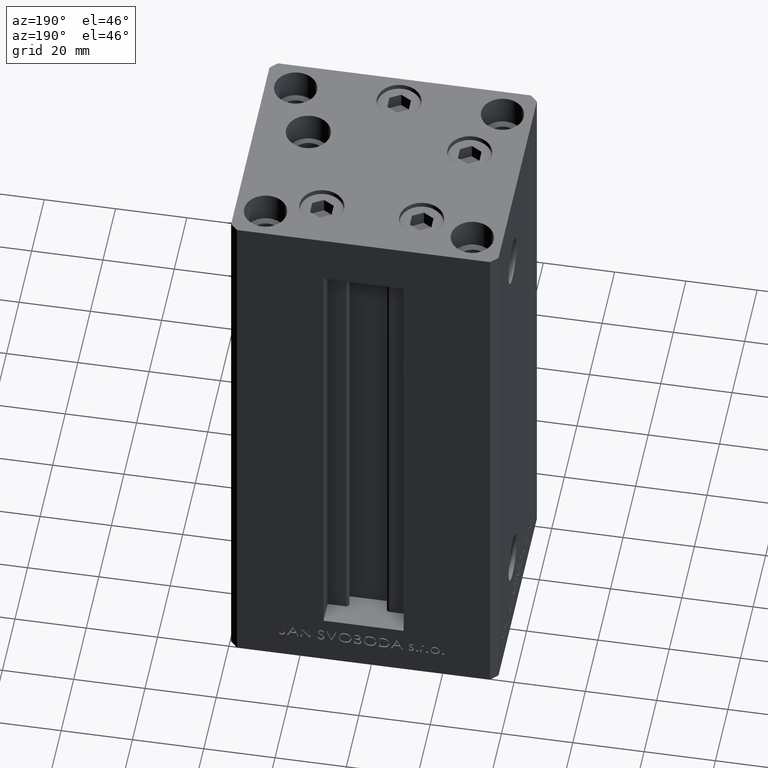
[diagram: clean part render]
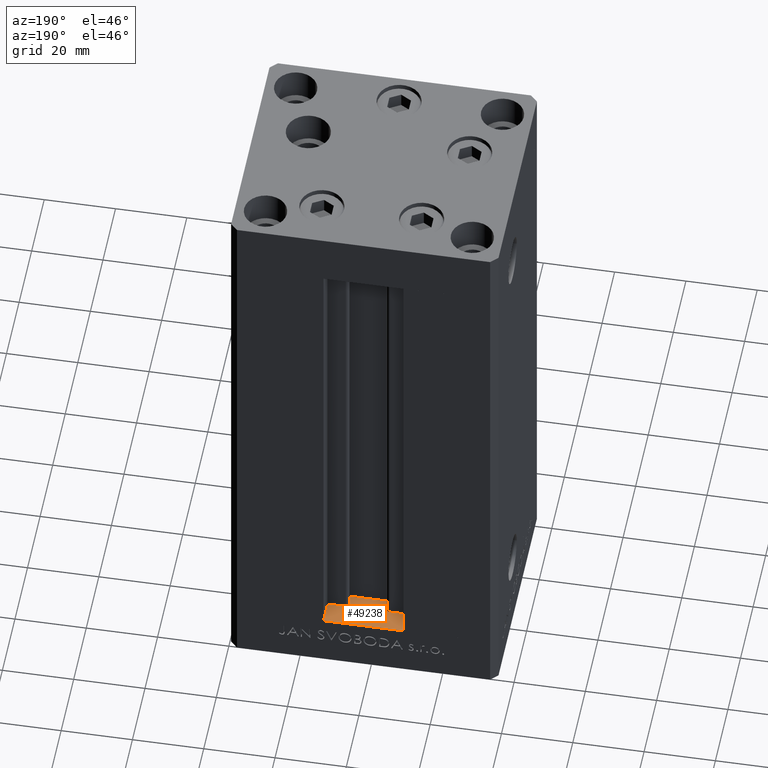
[diagram: same view with one face highlighted and labeled with its STEP entity id]
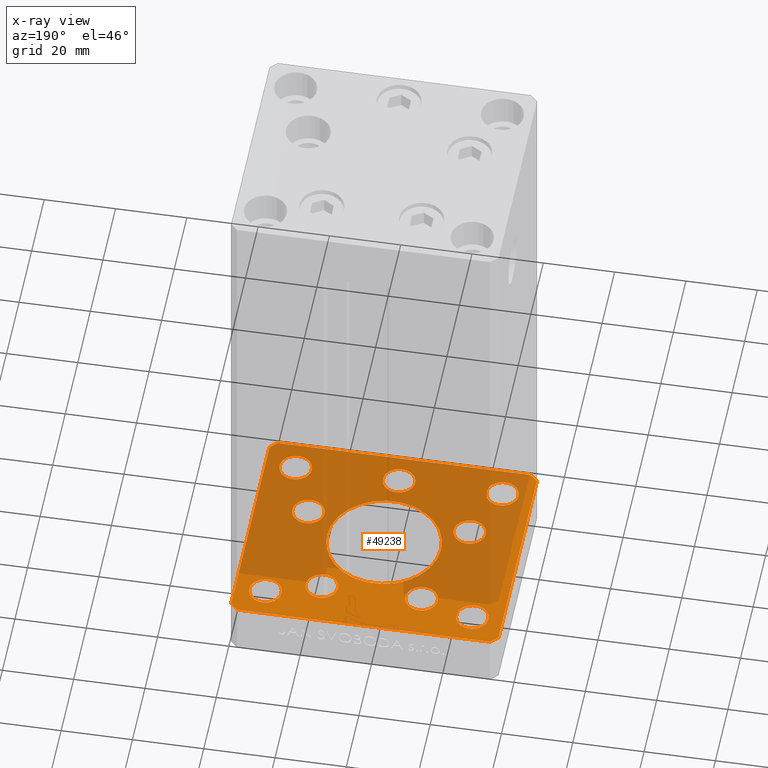
[diagram: x-ray of the same camera — body ghosted, the highlighted face saturated]
A machine part, auxiliary view. The second image highlights one B-rep face of the part: STEP entity #49238.
The next image is the same camera in x-ray: the body ghosted, the highlighted face saturated — about 70% of this face is hidden behind the body in this view.
In plain terms, the highlighted planar face has unit normal (0, 0, -1).
Its self-contained STEP definition (entity closure, byte-faithful):
#31 = CARTESIAN_POINT ( 'NONE',  ( -35.50000000000000711, 32.49999999999997868, -15.00000000000000000 ) ) ;
#572 = CARTESIAN_POINT ( 'NONE',  ( -22.62741699796953299, -8.000000000000000000, -15.00000000000000000 ) ) ;
#692 = CARTESIAN_POINT ( 'NONE',  ( 35.50000000000000000, 32.49999999999999289, -15.00000000000000000 ) ) ;
#1044 = CARTESIAN_POINT ( 'NONE',  ( 24.50000000000000000, 24.00000000000000355, -15.00000000000000000 ) ) ;
#1869 = DIRECTION ( 'NONE',  ( 0.000000000000000000, -0.000000000000000000, -1.000000000000000000 ) ) ;
#2067 = CARTESIAN_POINT ( 'NONE',  ( 33.50000000000000000, -23.99999999999999645, -15.00000000000000000 ) ) ;
#2070 = CARTESIAN_POINT ( 'NONE',  ( -24.50000000000000000, 24.00000000000000711, -15.00000000000000000 ) ) ;
#2324 = CARTESIAN_POINT ( 'NONE',  ( 18.12741699796953299, -8.000000000000000000, -15.00000000000000000 ) ) ;
#2354 = DIRECTION ( 'NONE',  ( -0.000000000000000000, 0.000000000000000000, 1.000000000000000000 ) ) ;
#2449 = DIRECTION ( 'NONE',  ( 0.000000000000000000, -0.000000000000000000, -1.000000000000000000 ) ) ;
#2646 = VERTEX_POINT ( 'NONE', #44359 ) ;
#2682 = DIRECTION ( 'NONE',  ( -0.000000000000000000, 0.000000000000000000, 1.000000000000000000 ) ) ;
#2734 = AXIS2_PLACEMENT_3D ( 'NONE', #23352, #30130, #45480 ) ;
#2791 = DIRECTION ( 'NONE',  ( 0.000000000000000000, -0.000000000000000000, -1.000000000000000000 ) ) ;
#2847 = CARTESIAN_POINT ( 'NONE',  ( -29.00000000000000000, 24.00000000000000711, -15.00000000000000000 ) ) ;
#2968 = VERTEX_POINT ( 'NONE', #5521 ) ;
#3201 = ORIENTED_EDGE ( 'NONE', *, *, #28352, .T. ) ;
#3606 = CIRCLE ( 'NONE', #31682, 4.500000000000001776 ) ;
#4001 = EDGE_LOOP ( 'NONE', ( #44010, #45475 ) ) ;
#4158 = LINE ( 'NONE', #31036, #15124 ) ;
#4668 = EDGE_CURVE ( 'NONE', #26054, #7098, #44201, .T. ) ;
#4969 = LINE ( 'NONE', #16527, #28026 ) ;
#5238 = ORIENTED_EDGE ( 'NONE', *, *, #25130, .T. ) ;
#5419 = VERTEX_POINT ( 'NONE', #47436 ) ;
#5521 = CARTESIAN_POINT ( 'NONE',  ( 37.50000000000000711, 30.50000000000001421, -15.00000000000000000 ) ) ;
#5536 = ORIENTED_EDGE ( 'NONE', *, *, #29501, .T. ) ;
#5693 = CIRCLE ( 'NONE', #33774, 4.499999999999997335 ) ;
#5953 = FACE_BOUND ( 'NONE', #30931, .T. ) ;
#5983 = AXIS2_PLACEMENT_3D ( 'NONE', #25358, #11026, #26340 ) ;
#6270 = CIRCLE ( 'NONE', #7058, 4.500000000000001776 ) ;
#6457 = FACE_OUTER_BOUND ( 'NONE', #41402, .T. ) ;
#6460 = CARTESIAN_POINT ( 'NONE',  ( 35.50000000000001421, -32.49999999999992184, -15.00000000000000000 ) ) ;
#6701 = DIRECTION ( 'NONE',  ( 1.000000000000000000, 0.000000000000000000, 0.000000000000000000 ) ) ;
#6923 = AXIS2_PLACEMENT_3D ( 'NONE', #42790, #32211, #16154 ) ;
#7058 = AXIS2_PLACEMENT_3D ( 'NONE', #39542, #36013, #24459 ) ;
#7098 = VERTEX_POINT ( 'NONE', #11511 ) ;
#7985 = EDGE_CURVE ( 'NONE', #22175, #18802, #12242, .T. ) ;
#8121 = EDGE_CURVE ( 'NONE', #17667, #47147, #41159, .T. ) ;
#8351 = DIRECTION ( 'NONE',  ( 1.000000000000000000, 0.000000000000000000, 0.000000000000000000 ) ) ;
#8387 = CARTESIAN_POINT ( 'NONE',  ( 24.50000000000000711, -23.99999999999999645, -15.00000000000000000 ) ) ;
#8642 = EDGE_LOOP ( 'NONE', ( #21880, #26186 ) ) ;
#8973 = CARTESIAN_POINT ( 'NONE',  ( 29.00000000000000355, -23.99999999999999645, -15.00000000000000000 ) ) ;
#9057 = VERTEX_POINT ( 'NONE', #31727 ) ;
#9321 = DIRECTION ( 'NONE',  ( 0.7071067811865463515, 0.7071067811865487940, 0.000000000000000000 ) ) ;
#10259 = CARTESIAN_POINT ( 'NONE',  ( -27.12741699796953299, -8.000000000000000000, -15.00000000000000000 ) ) ;
#10585 = CARTESIAN_POINT ( 'NONE',  ( -29.00000000000000000, -23.99999999999999645, -15.00000000000000000 ) ) ;
#10612 = DIRECTION ( 'NONE',  ( -0.7071067811865524577, -0.7071067811865426878, 0.000000000000000000 ) ) ;
#10865 = VECTOR ( 'NONE', #26700, 1000.000000000000000 ) ;
#11026 = DIRECTION ( 'NONE',  ( -0.000000000000000000, 0.000000000000000000, 1.000000000000000000 ) ) ;
#11162 = CARTESIAN_POINT ( 'NONE',  ( -18.12741699796953654, -8.000000000000000000, -15.00000000000000000 ) ) ;
#11511 = CARTESIAN_POINT ( 'NONE',  ( 16.00000000000000000, 0.000000000000000000, -15.00000000000000000 ) ) ;
#11529 = EDGE_CURVE ( 'NONE', #38359, #19696, #15577, .T. ) ;
#11785 = CARTESIAN_POINT ( 'NONE',  ( 27.12741699796953654, -8.000000000000000000, -15.00000000000000000 ) ) ;
#12036 = CARTESIAN_POINT ( 'NONE',  ( 0.000000000000000000, 0.000000000000000000, -15.00000000000000000 ) ) ;
#12242 = CIRCLE ( 'NONE', #40323, 4.500000000000000888 ) ;
#12443 = AXIS2_PLACEMENT_3D ( 'NONE', #10585, #2791, #33924 ) ;
#12460 = AXIS2_PLACEMENT_3D ( 'NONE', #36773, #2354, #17678 ) ;
#12774 = VERTEX_POINT ( 'NONE', #692 ) ;
#13040 = ORIENTED_EDGE ( 'NONE', *, *, #29660, .T. ) ;
#13302 = EDGE_CURVE ( 'NONE', #47147, #17667, #46149, .T. ) ;
#13459 = ORIENTED_EDGE ( 'NONE', *, *, #41717, .F. ) ;
#13496 = CARTESIAN_POINT ( 'NONE',  ( 0.000000000000000000, 0.000000000000000000, -15.00000000000000000 ) ) ;
#13983 = DIRECTION ( 'NONE',  ( -0.000000000000000000, 0.000000000000000000, 1.000000000000000000 ) ) ;
#14026 = AXIS2_PLACEMENT_3D ( 'NONE', #36996, #29447, #44788 ) ;
#14185 = DIRECTION ( 'NONE',  ( -0.000000000000000000, 0.000000000000000000, 1.000000000000000000 ) ) ;
#14399 = CARTESIAN_POINT ( 'NONE',  ( -18.49106857963323947, 19.50000000000000000, -15.00000000000000000 ) ) ;
#14804 = CIRCLE ( 'NONE', #23621, 4.499999999999997335 ) ;
#15006 = ORIENTED_EDGE ( 'NONE', *, *, #11529, .F. ) ;
#15062 = ORIENTED_EDGE ( 'NONE', *, *, #34380, .T. ) ;
#15124 = VECTOR ( 'NONE', #46388, 1000.000000000000000 ) ;
#15274 = DIRECTION ( 'NONE',  ( 1.000000000000000000, 0.000000000000000000, 0.000000000000000000 ) ) ;
#15577 = CIRCLE ( 'NONE', #2734, 4.500000000000000888 ) ;
#15876 = ORIENTED_EDGE ( 'NONE', *, *, #27851, .T. ) ;
#15892 = DIRECTION ( 'NONE',  ( -0.000000000000000000, 0.000000000000000000, 1.000000000000000000 ) ) ;
#16154 = DIRECTION ( 'NONE',  ( 1.000000000000000000, 0.000000000000000000, 0.000000000000000000 ) ) ;
#16261 = DIRECTION ( 'NONE',  ( 0.000000000000000000, -0.000000000000000000, -1.000000000000000000 ) ) ;
#16372 = ORIENTED_EDGE ( 'NONE', *, *, #33979, .F. ) ;
#16425 = EDGE_CURVE ( 'NONE', #48877, #26139, #49051, .T. ) ;
#16527 = CARTESIAN_POINT ( 'NONE',  ( -37.50000000000000000, -30.50000000000004263, -15.00000000000000000 ) ) ;
#16849 = LINE ( 'NONE', #17350, #24266 ) ;
#16926 = CARTESIAN_POINT ( 'NONE',  ( -22.62741699796953299, -8.000000000000000000, -15.00000000000000000 ) ) ;
#17152 = VECTOR ( 'NONE', #10612, 1000.000000000000000 ) ;
#17202 = VECTOR ( 'NONE', #45491, 1000.000000000000000 ) ;
#17350 = CARTESIAN_POINT ( 'NONE',  ( 35.50000000000001421, -32.49999999999992184, -15.00000000000000000 ) ) ;
#17467 = AXIS2_PLACEMENT_3D ( 'NONE', #13496, #2682, #6701 ) ;
#17501 = DIRECTION ( 'NONE',  ( 1.000000000000000000, 0.000000000000000000, 0.000000000000000000 ) ) ;
#17667 = VERTEX_POINT ( 'NONE', #8387 ) ;
#17678 = DIRECTION ( 'NONE',  ( 1.000000000000000000, 0.000000000000000000, 0.000000000000000000 ) ) ;
#17694 = DIRECTION ( 'NONE',  ( 1.000000000000000000, 0.000000000000000000, 0.000000000000000000 ) ) ;
#17779 = CARTESIAN_POINT ( 'NONE',  ( 9.491068579633235913, 19.50000000000000000, -15.00000000000000000 ) ) ;
#18102 = ORIENTED_EDGE ( 'NONE', *, *, #8121, .T. ) ;
#18665 = CARTESIAN_POINT ( 'NONE',  ( -37.50000000000000000, -30.50000000000004263, -15.00000000000000000 ) ) ;
#18672 = CARTESIAN_POINT ( 'NONE',  ( -37.50000000000001421, 30.50000000000000000, -15.00000000000000000 ) ) ;
#18802 = VERTEX_POINT ( 'NONE', #1044 ) ;
#19247 = CARTESIAN_POINT ( 'NONE',  ( 35.50000000000000000, 32.49999999999999289, -15.00000000000000000 ) ) ;
#19467 = AXIS2_PLACEMENT_3D ( 'NONE', #45540, #37504, #20980 ) ;
#19493 = DIRECTION ( 'NONE',  ( -1.000000000000000000, -1.954618001100627573E-16, 0.000000000000000000 ) ) ;
#19696 = VERTEX_POINT ( 'NONE', #38048 ) ;
#20027 = CARTESIAN_POINT ( 'NONE',  ( -29.00000000000000000, 24.00000000000000711, -15.00000000000000000 ) ) ;
#20384 = VERTEX_POINT ( 'NONE', #38430 ) ;
#20517 = DIRECTION ( 'NONE',  ( -0.000000000000000000, 0.000000000000000000, 1.000000000000000000 ) ) ;
#20917 = VERTEX_POINT ( 'NONE', #14399 ) ;
#20942 = EDGE_CURVE ( 'NONE', #43773, #26944, #41144, .T. ) ;
#20980 = DIRECTION ( 'NONE',  ( 1.000000000000000000, 0.000000000000000000, 0.000000000000000000 ) ) ;
#20991 = LINE ( 'NONE', #47640, #26198 ) ;
#21166 = EDGE_CURVE ( 'NONE', #23777, #2646, #16849, .T. ) ;
#21205 = DIRECTION ( 'NONE',  ( 1.000000000000000000, 0.000000000000000000, 0.000000000000000000 ) ) ;
#21290 = CARTESIAN_POINT ( 'NONE',  ( 29.00000000000000000, 24.00000000000000355, -15.00000000000000000 ) ) ;
#21506 = CARTESIAN_POINT ( 'NONE',  ( 0.000000000000000000, -24.00000000000001066, -15.00000000000000000 ) ) ;
#21880 = ORIENTED_EDGE ( 'NONE', *, *, #38311, .T. ) ;
#22020 = FACE_BOUND ( 'NONE', #31720, .T. ) ;
#22175 = VERTEX_POINT ( 'NONE', #43068 ) ;
#22187 = DIRECTION ( 'NONE',  ( 1.000000000000000000, 0.000000000000000000, 0.000000000000000000 ) ) ;
#22289 = EDGE_LOOP ( 'NONE', ( #25198, #32712 ) ) ;
#22374 = LINE ( 'NONE', #37704, #17202 ) ;
#22389 = EDGE_LOOP ( 'NONE', ( #15062, #5536 ) ) ;
#22394 = AXIS2_PLACEMENT_3D ( 'NONE', #21290, #2449, #36874 ) ;
#22540 = AXIS2_PLACEMENT_3D ( 'NONE', #36283, #1869, #21205 ) ;
#22716 = AXIS2_PLACEMENT_3D ( 'NONE', #8973, #20517, #33062 ) ;
#22818 = CARTESIAN_POINT ( 'NONE',  ( 18.49106857963324657, 19.50000000000000000, -15.00000000000000000 ) ) ;
#23054 = ORIENTED_EDGE ( 'NONE', *, *, #37451, .T. ) ;
#23328 = DIRECTION ( 'NONE',  ( 0.7071067811865512365, -0.7071067811865439090, 0.000000000000000000 ) ) ;
#23352 = CARTESIAN_POINT ( 'NONE',  ( -29.00000000000000000, -23.99999999999999645, -15.00000000000000000 ) ) ;
#23621 = AXIS2_PLACEMENT_3D ( 'NONE', #16926, #32247, #47587 ) ;
#23777 = VERTEX_POINT ( 'NONE', #6460 ) ;
#23837 = EDGE_CURVE ( 'NONE', #12774, #48877, #38598, .T. ) ;
#24266 = VECTOR ( 'NONE', #9321, 1000.000000000000000 ) ;
#24459 = DIRECTION ( 'NONE',  ( 1.000000000000000000, 0.000000000000000000, 0.000000000000000000 ) ) ;
#24589 = CIRCLE ( 'NONE', #31003, 4.500000000000000888 ) ;
#24691 = VERTEX_POINT ( 'NONE', #11785 ) ;
#24821 = ORIENTED_EDGE ( 'NONE', *, *, #21166, .F. ) ;
#25083 = VERTEX_POINT ( 'NONE', #2324 ) ;
#25130 = EDGE_CURVE ( 'NONE', #20917, #25243, #49315, .T. ) ;
#25196 = VECTOR ( 'NONE', #19493, 1000.000000000000000 ) ;
#25198 = ORIENTED_EDGE ( 'NONE', *, *, #7985, .F. ) ;
#25243 = VERTEX_POINT ( 'NONE', #49542 ) ;
#25295 = FACE_BOUND ( 'NONE', #22289, .T. ) ;
#25341 = VERTEX_POINT ( 'NONE', #18665 ) ;
#25358 = CARTESIAN_POINT ( 'NONE',  ( 22.62741699796953299, -8.000000000000000000, -15.00000000000000000 ) ) ;
#25544 = FACE_BOUND ( 'NONE', #4001, .T. ) ;
#25547 = EDGE_CURVE ( 'NONE', #2968, #12774, #22374, .T. ) ;
#25792 = FACE_BOUND ( 'NONE', #34081, .T. ) ;
#26054 = VERTEX_POINT ( 'NONE', #39136 ) ;
#26139 = VERTEX_POINT ( 'NONE', #18672 ) ;
#26186 = ORIENTED_EDGE ( 'NONE', *, *, #20942, .T. ) ;
#26198 = VECTOR ( 'NONE', #35829, 1000.000000000000000 ) ;
#26340 = DIRECTION ( 'NONE',  ( 1.000000000000000000, 0.000000000000000000, 0.000000000000000000 ) ) ;
#26420 = CARTESIAN_POINT ( 'NONE',  ( -35.50000000000000711, 32.49999999999997868, -15.00000000000000000 ) ) ;
#26500 = EDGE_CURVE ( 'NONE', #19696, #38359, #30072, .T. ) ;
#26700 = DIRECTION ( 'NONE',  ( 2.275047181608926165E-16, -1.000000000000000000, 0.000000000000000000 ) ) ;
#26944 = VERTEX_POINT ( 'NONE', #22818 ) ;
#27200 = CIRCLE ( 'NONE', #22394, 4.500000000000000888 ) ;
#27288 = ORIENTED_EDGE ( 'NONE', *, *, #33203, .T. ) ;
#27321 = DIRECTION ( 'NONE',  ( 1.000000000000000000, 0.000000000000000000, 0.000000000000000000 ) ) ;
#27353 = DIRECTION ( 'NONE',  ( 0.000000000000000000, -0.000000000000000000, -1.000000000000000000 ) ) ;
#27851 = EDGE_CURVE ( 'NONE', #25083, #24691, #43672, .T. ) ;
#28026 = VECTOR ( 'NONE', #23328, 1000.000000000000000 ) ;
#28098 = ORIENTED_EDGE ( 'NONE', *, *, #25547, .F. ) ;
#28352 = EDGE_CURVE ( 'NONE', #42818, #37389, #14804, .T. ) ;
#28559 = CIRCLE ( 'NONE', #6923, 4.500000000000000888 ) ;
#28920 = EDGE_LOOP ( 'NONE', ( #27288, #15876 ) ) ;
#29447 = DIRECTION ( 'NONE',  ( -0.000000000000000000, 0.000000000000000000, 1.000000000000000000 ) ) ;
#29501 = EDGE_CURVE ( 'NONE', #20384, #43078, #47727, .T. ) ;
#29660 = EDGE_CURVE ( 'NONE', #37760, #5419, #3606, .T. ) ;
#30072 = CIRCLE ( 'NONE', #12443, 4.500000000000000888 ) ;
#30130 = DIRECTION ( 'NONE',  ( 0.000000000000000000, -0.000000000000000000, -1.000000000000000000 ) ) ;
#30347 = CIRCLE ( 'NONE', #38407, 4.500000000000005329 ) ;
#30398 = DIRECTION ( 'NONE',  ( 1.000000000000000000, 0.000000000000000000, 0.000000000000000000 ) ) ;
#30465 = CARTESIAN_POINT ( 'NONE',  ( -37.50000000000001421, 30.50000000000000000, -15.00000000000000000 ) ) ;
#30696 = EDGE_LOOP ( 'NONE', ( #47990, #5238 ) ) ;
#30931 = EDGE_LOOP ( 'NONE', ( #15006, #36363 ) ) ;
#31003 = AXIS2_PLACEMENT_3D ( 'NONE', #2847, #48324, #22187 ) ;
#31035 = EDGE_CURVE ( 'NONE', #26139, #25341, #45568, .T. ) ;
#31036 = CARTESIAN_POINT ( 'NONE',  ( -35.50000000000001421, -32.50000000000000711, -15.00000000000000000 ) ) ;
#31318 = DIRECTION ( 'NONE',  ( -0.000000000000000000, 0.000000000000000000, 1.000000000000000000 ) ) ;
#31682 = AXIS2_PLACEMENT_3D ( 'NONE', #21506, #13983, #17501 ) ;
#31720 = EDGE_LOOP ( 'NONE', ( #23054, #13040 ) ) ;
#31727 = CARTESIAN_POINT ( 'NONE',  ( -35.50000000000001421, -32.50000000000000711, -15.00000000000000000 ) ) ;
#32211 = DIRECTION ( 'NONE',  ( -0.000000000000000000, 0.000000000000000000, 1.000000000000000000 ) ) ;
#32247 = DIRECTION ( 'NONE',  ( -0.000000000000000000, 0.000000000000000000, 1.000000000000000000 ) ) ;
#32712 = ORIENTED_EDGE ( 'NONE', *, *, #43755, .F. ) ;
#33062 = DIRECTION ( 'NONE',  ( 1.000000000000000000, 0.000000000000000000, 0.000000000000000000 ) ) ;
#33203 = EDGE_CURVE ( 'NONE', #24691, #25083, #28559, .T. ) ;
#33513 = CARTESIAN_POINT ( 'NONE',  ( -13.99106857963324124, 19.50000000000000000, -15.00000000000000000 ) ) ;
#33774 = AXIS2_PLACEMENT_3D ( 'NONE', #572, #15892, #8351 ) ;
#33924 = DIRECTION ( 'NONE',  ( 1.000000000000000000, 0.000000000000000000, 0.000000000000000000 ) ) ;
#33979 = EDGE_CURVE ( 'NONE', #2646, #2968, #20991, .T. ) ;
#34081 = EDGE_LOOP ( 'NONE', ( #47453, #18102 ) ) ;
#34354 = CARTESIAN_POINT ( 'NONE',  ( -24.50000000000000000, -23.99999999999999645, -15.00000000000000000 ) ) ;
#34380 = EDGE_CURVE ( 'NONE', #43078, #20384, #24589, .T. ) ;
#34565 = AXIS2_PLACEMENT_3D ( 'NONE', #12036, #27353, #42683 ) ;
#35829 = DIRECTION ( 'NONE',  ( 0.000000000000000000, 1.000000000000000000, 0.000000000000000000 ) ) ;
#35955 = ORIENTED_EDGE ( 'NONE', *, *, #23837, .F. ) ;
#36013 = DIRECTION ( 'NONE',  ( -0.000000000000000000, 0.000000000000000000, 1.000000000000000000 ) ) ;
#36283 = CARTESIAN_POINT ( 'NONE',  ( 0.000000000000000000, 0.000000000000000000, -15.00000000000000000 ) ) ;
#36363 = ORIENTED_EDGE ( 'NONE', *, *, #26500, .F. ) ;
#36773 = CARTESIAN_POINT ( 'NONE',  ( 29.00000000000000355, -23.99999999999999645, -15.00000000000000000 ) ) ;
#36874 = DIRECTION ( 'NONE',  ( 1.000000000000000000, 0.000000000000000000, 0.000000000000000000 ) ) ;
#36996 = CARTESIAN_POINT ( 'NONE',  ( -13.99106857963324124, 19.50000000000000000, -15.00000000000000000 ) ) ;
#37256 = EDGE_LOOP ( 'NONE', ( #3201, #47703 ) ) ;
#37360 = FACE_BOUND ( 'NONE', #22389, .T. ) ;
#37389 = VERTEX_POINT ( 'NONE', #10259 ) ;
#37451 = EDGE_CURVE ( 'NONE', #5419, #37760, #6270, .T. ) ;
#37504 = DIRECTION ( 'NONE',  ( -0.000000000000000000, 0.000000000000000000, 1.000000000000000000 ) ) ;
#37607 = FACE_BOUND ( 'NONE', #8642, .T. ) ;
#37704 = CARTESIAN_POINT ( 'NONE',  ( 37.50000000000000711, 30.50000000000001421, -15.00000000000000000 ) ) ;
#37760 = VERTEX_POINT ( 'NONE', #39737 ) ;
#38048 = CARTESIAN_POINT ( 'NONE',  ( -33.50000000000000000, -23.99999999999999645, -15.00000000000000000 ) ) ;
#38268 = ORIENTED_EDGE ( 'NONE', *, *, #40511, .F. ) ;
#38311 = EDGE_CURVE ( 'NONE', #26944, #43773, #30347, .T. ) ;
#38359 = VERTEX_POINT ( 'NONE', #34354 ) ;
#38407 = AXIS2_PLACEMENT_3D ( 'NONE', #38632, #31318, #15274 ) ;
#38430 = CARTESIAN_POINT ( 'NONE',  ( -33.50000000000000000, 24.00000000000000711, -15.00000000000000000 ) ) ;
#38598 = LINE ( 'NONE', #19247, #25196 ) ;
#38632 = CARTESIAN_POINT ( 'NONE',  ( 13.99106857963324124, 19.50000000000000000, -15.00000000000000000 ) ) ;
#39136 = CARTESIAN_POINT ( 'NONE',  ( -16.00000000000000000, 1.959434878635765131E-15, -15.00000000000000000 ) ) ;
#39542 = CARTESIAN_POINT ( 'NONE',  ( 0.000000000000000000, -24.00000000000001066, -15.00000000000000000 ) ) ;
#39737 = CARTESIAN_POINT ( 'NONE',  ( -4.500000000000001776, -24.00000000000001066, -15.00000000000000000 ) ) ;
#40225 = EDGE_CURVE ( 'NONE', #25243, #20917, #40768, .T. ) ;
#40323 = AXIS2_PLACEMENT_3D ( 'NONE', #42648, #16261, #27321 ) ;
#40511 = EDGE_CURVE ( 'NONE', #25341, #9057, #4969, .T. ) ;
#40768 = CIRCLE ( 'NONE', #49590, 4.499999999999999112 ) ;
#41144 = CIRCLE ( 'NONE', #19467, 4.500000000000005329 ) ;
#41159 = CIRCLE ( 'NONE', #22716, 4.499999999999997335 ) ;
#41402 = EDGE_LOOP ( 'NONE', ( #38268, #49031, #49309, #35955, #28098, #16372, #24821, #13459 ) ) ;
#41717 = EDGE_CURVE ( 'NONE', #9057, #23777, #4158, .T. ) ;
#42608 = CIRCLE ( 'NONE', #34565, 16.00000000000000000 ) ;
#42648 = CARTESIAN_POINT ( 'NONE',  ( 29.00000000000000000, 24.00000000000000355, -15.00000000000000000 ) ) ;
#42683 = DIRECTION ( 'NONE',  ( 1.000000000000000000, 0.000000000000000000, 0.000000000000000000 ) ) ;
#42790 = CARTESIAN_POINT ( 'NONE',  ( 22.62741699796953299, -8.000000000000000000, -15.00000000000000000 ) ) ;
#42818 = VERTEX_POINT ( 'NONE', #11162 ) ;
#43068 = CARTESIAN_POINT ( 'NONE',  ( 33.50000000000000000, 24.00000000000000355, -15.00000000000000000 ) ) ;
#43078 = VERTEX_POINT ( 'NONE', #2070 ) ;
#43672 = CIRCLE ( 'NONE', #5983, 4.500000000000000888 ) ;
#43755 = EDGE_CURVE ( 'NONE', #18802, #22175, #27200, .T. ) ;
#43773 = VERTEX_POINT ( 'NONE', #17779 ) ;
#44010 = ORIENTED_EDGE ( 'NONE', *, *, #44726, .F. ) ;
#44201 = CIRCLE ( 'NONE', #22540, 16.00000000000000000 ) ;
#44359 = CARTESIAN_POINT ( 'NONE',  ( 37.50000000000000711, -30.49999999999992895, -15.00000000000000000 ) ) ;
#44645 = FACE_BOUND ( 'NONE', #30696, .T. ) ;
#44726 = EDGE_CURVE ( 'NONE', #7098, #26054, #42608, .T. ) ;
#44788 = DIRECTION ( 'NONE',  ( 1.000000000000000000, 0.000000000000000000, 0.000000000000000000 ) ) ;
#44896 = PLANE ( 'NONE',  #17467 ) ;
#45253 = DIRECTION ( 'NONE',  ( -0.000000000000000000, 0.000000000000000000, 1.000000000000000000 ) ) ;
#45401 = EDGE_CURVE ( 'NONE', #37389, #42818, #5693, .T. ) ;
#45475 = ORIENTED_EDGE ( 'NONE', *, *, #4668, .F. ) ;
#45480 = DIRECTION ( 'NONE',  ( 1.000000000000000000, 0.000000000000000000, 0.000000000000000000 ) ) ;
#45491 = DIRECTION ( 'NONE',  ( -0.7071067811865524577, 0.7071067811865426878, 0.000000000000000000 ) ) ;
#45540 = CARTESIAN_POINT ( 'NONE',  ( 13.99106857963324124, 19.50000000000000000, -15.00000000000000000 ) ) ;
#45568 = LINE ( 'NONE', #30465, #10865 ) ;
#46149 = CIRCLE ( 'NONE', #12460, 4.499999999999997335 ) ;
#46388 = DIRECTION ( 'NONE',  ( 1.000000000000000000, 1.172770800660376149E-15, 0.000000000000000000 ) ) ;
#46950 = AXIS2_PLACEMENT_3D ( 'NONE', #20027, #45253, #30398 ) ;
#47147 = VERTEX_POINT ( 'NONE', #2067 ) ;
#47436 = CARTESIAN_POINT ( 'NONE',  ( 4.500000000000001776, -24.00000000000001066, -15.00000000000000000 ) ) ;
#47453 = ORIENTED_EDGE ( 'NONE', *, *, #13302, .T. ) ;
#47587 = DIRECTION ( 'NONE',  ( 1.000000000000000000, 0.000000000000000000, 0.000000000000000000 ) ) ;
#47640 = CARTESIAN_POINT ( 'NONE',  ( 37.50000000000000711, -30.49999999999992895, -15.00000000000000000 ) ) ;
#47703 = ORIENTED_EDGE ( 'NONE', *, *, #45401, .T. ) ;
#47727 = CIRCLE ( 'NONE', #46950, 4.500000000000000888 ) ;
#47914 = FACE_BOUND ( 'NONE', #28920, .T. ) ;
#47990 = ORIENTED_EDGE ( 'NONE', *, *, #40225, .T. ) ;
#48324 = DIRECTION ( 'NONE',  ( -0.000000000000000000, 0.000000000000000000, 1.000000000000000000 ) ) ;
#48411 = FACE_BOUND ( 'NONE', #37256, .T. ) ;
#48877 = VERTEX_POINT ( 'NONE', #31 ) ;
#49031 = ORIENTED_EDGE ( 'NONE', *, *, #31035, .F. ) ;
#49051 = LINE ( 'NONE', #26420, #17152 ) ;
#49238 = ADVANCED_FACE ( 'NONE', ( #25544, #48411, #22020, #47914, #37607, #44645, #25295, #5953, #6457, #37360, #25792 ), #44896, .F. ) ;
#49309 = ORIENTED_EDGE ( 'NONE', *, *, #16425, .F. ) ;
#49315 = CIRCLE ( 'NONE', #14026, 4.499999999999999112 ) ;
#49542 = CARTESIAN_POINT ( 'NONE',  ( -9.491068579633243019, 19.50000000000000000, -15.00000000000000000 ) ) ;
#49590 = AXIS2_PLACEMENT_3D ( 'NONE', #33513, #14185, #17694 ) ;